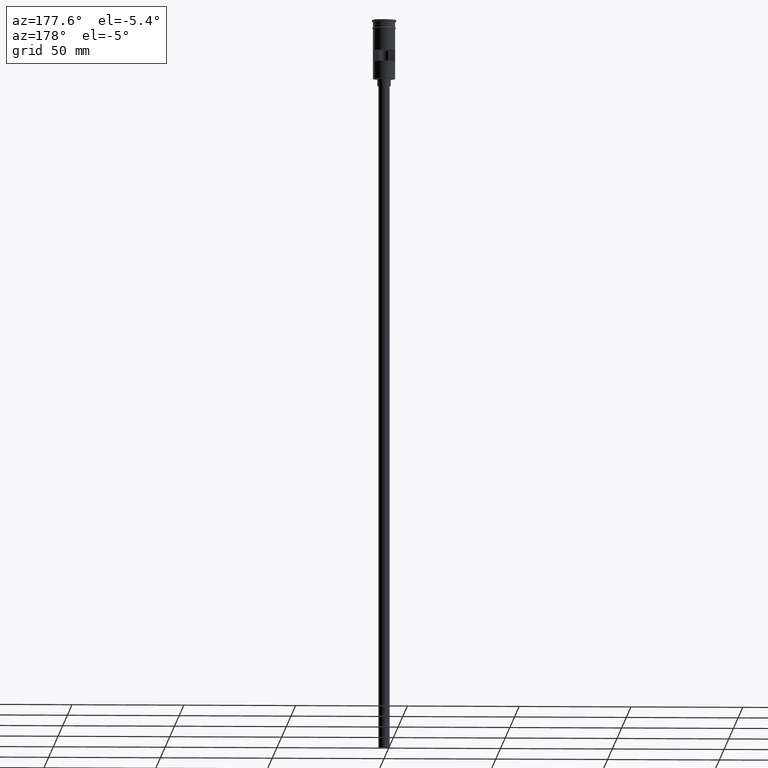
[diagram: clean part render]
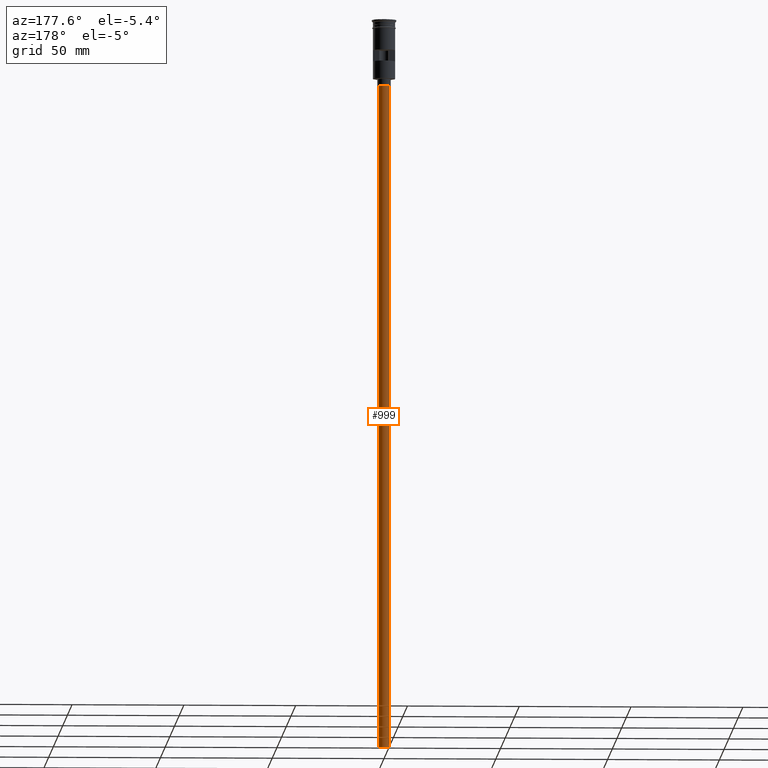
[diagram: same view with one face highlighted and labeled with its STEP entity id]
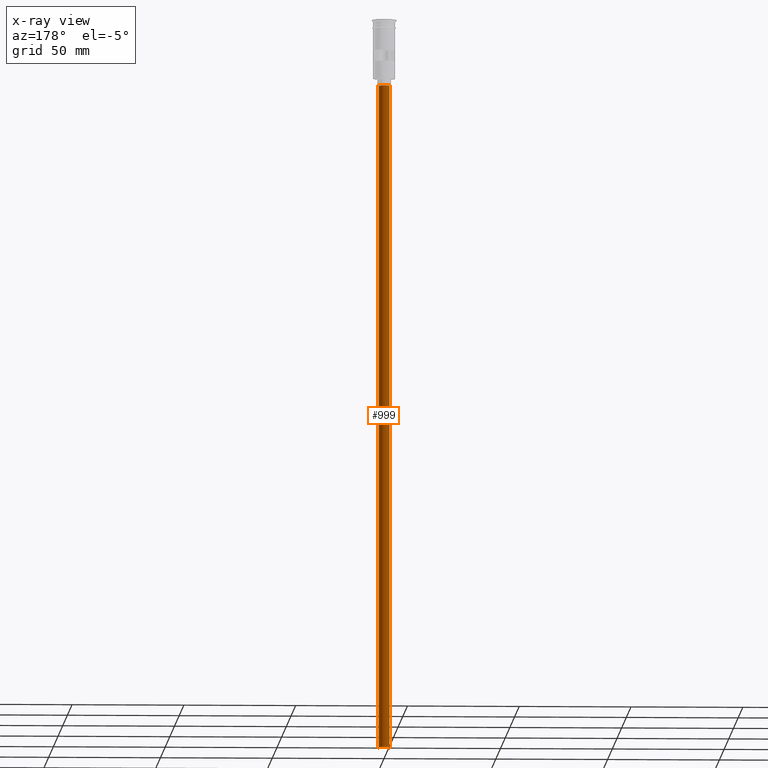
[diagram: x-ray of the same camera — body ghosted, the highlighted face saturated]
A machine part, auxiliary view. The second image highlights one B-rep face of the part: STEP entity #999.
The next image is the same camera in x-ray: the body ghosted, the highlighted face saturated — about 0% of this face is hidden behind the body in this view.
In plain terms, the highlighted cylindrical surface (edge-blend (fillet) strip) has radius 2.5 mm, axis along (-0, -0, 1).
Its self-contained STEP definition (entity closure, byte-faithful):
#12 = CARTESIAN_POINT ( 'NONE',  ( 0.000000000000000000, 0.000000000000000000, -326.5000000000000000 ) ) ;
#30 = CARTESIAN_POINT ( 'NONE',  ( -2.500000000000000000, 3.061616997868383141E-16, -326.5000000000000000 ) ) ;
#67 = VERTEX_POINT ( 'NONE', #752 ) ;
#82 = EDGE_LOOP ( 'NONE', ( #1204, #1088, #731, #760 ) ) ;
#86 = EDGE_CURVE ( 'NONE', #469, #67, #293, .T. ) ;
#113 = AXIS2_PLACEMENT_3D ( 'NONE', #908, #328, #790 ) ;
#149 = VERTEX_POINT ( 'NONE', #986 ) ;
#204 = DIRECTION ( 'NONE',  ( -1.000000000000000000, 0.000000000000000000, 0.000000000000000000 ) ) ;
#277 = DIRECTION ( 'NONE',  ( -0.000000000000000000, -0.000000000000000000, 1.000000000000000000 ) ) ;
#293 = CIRCLE ( 'NONE', #1177, 2.500000000000000000 ) ;
#328 = DIRECTION ( 'NONE',  ( -0.000000000000000000, -0.000000000000000000, 1.000000000000000000 ) ) ;
#350 = DIRECTION ( 'NONE',  ( -0.000000000000000000, -0.000000000000000000, 1.000000000000000000 ) ) ;
#368 = CARTESIAN_POINT ( 'NONE',  ( 2.500000000000000000, 0.000000000000000000, -326.5000000000000000 ) ) ;
#422 = FACE_OUTER_BOUND ( 'NONE', #82, .T. ) ;
#469 = VERTEX_POINT ( 'NONE', #30 ) ;
#652 = EDGE_CURVE ( 'NONE', #1165, #149, #1502, .T. ) ;
#731 = ORIENTED_EDGE ( 'NONE', *, *, #652, .T. ) ;
#752 = CARTESIAN_POINT ( 'NONE',  ( 2.500000000000000000, 0.000000000000000000, -326.5000000000000000 ) ) ;
#760 = ORIENTED_EDGE ( 'NONE', *, *, #1387, .F. ) ;
#790 = DIRECTION ( 'NONE',  ( 1.000000000000000000, 0.000000000000000000, 0.000000000000000000 ) ) ;
#820 = CARTESIAN_POINT ( 'NONE',  ( 0.000000000000000000, 0.000000000000000000, -29.50000000000000000 ) ) ;
#882 = DIRECTION ( 'NONE',  ( -1.000000000000000000, 0.000000000000000000, 0.000000000000000000 ) ) ;
#908 = CARTESIAN_POINT ( 'NONE',  ( 0.000000000000000000, 0.000000000000000000, -326.5000000000000000 ) ) ;
#962 = LINE ( 'NONE', #368, #1237 ) ;
#986 = CARTESIAN_POINT ( 'NONE',  ( 2.500000000000000000, 0.000000000000000000, -29.50000000000000000 ) ) ;
#999 = ADVANCED_FACE ( 'NONE', ( #422 ), #1538, .T. ) ;
#1088 = ORIENTED_EDGE ( 'NONE', *, *, #1247, .T. ) ;
#1165 = VERTEX_POINT ( 'NONE', #1581 ) ;
#1177 = AXIS2_PLACEMENT_3D ( 'NONE', #12, #1513, #882 ) ;
#1201 = LINE ( 'NONE', #1472, #1470 ) ;
#1204 = ORIENTED_EDGE ( 'NONE', *, *, #86, .F. ) ;
#1237 = VECTOR ( 'NONE', #277, 1000.000000000000000 ) ;
#1247 = EDGE_CURVE ( 'NONE', #469, #1165, #1201, .T. ) ;
#1387 = EDGE_CURVE ( 'NONE', #67, #149, #962, .T. ) ;
#1390 = AXIS2_PLACEMENT_3D ( 'NONE', #820, #1575, #204 ) ;
#1470 = VECTOR ( 'NONE', #350, 1000.000000000000000 ) ;
#1472 = CARTESIAN_POINT ( 'NONE',  ( -2.500000000000000000, 3.061616997868383141E-16, -326.5000000000000000 ) ) ;
#1502 = CIRCLE ( 'NONE', #1390, 2.500000000000000000 ) ;
#1513 = DIRECTION ( 'NONE',  ( 0.000000000000000000, 0.000000000000000000, -1.000000000000000000 ) ) ;
#1538 = CYLINDRICAL_SURFACE ( 'NONE', #113, 2.500000000000000000 ) ;
#1575 = DIRECTION ( 'NONE',  ( 0.000000000000000000, 0.000000000000000000, -1.000000000000000000 ) ) ;
#1581 = CARTESIAN_POINT ( 'NONE',  ( -2.500000000000000000, 3.061616997868383141E-16, -29.50000000000000000 ) ) ;